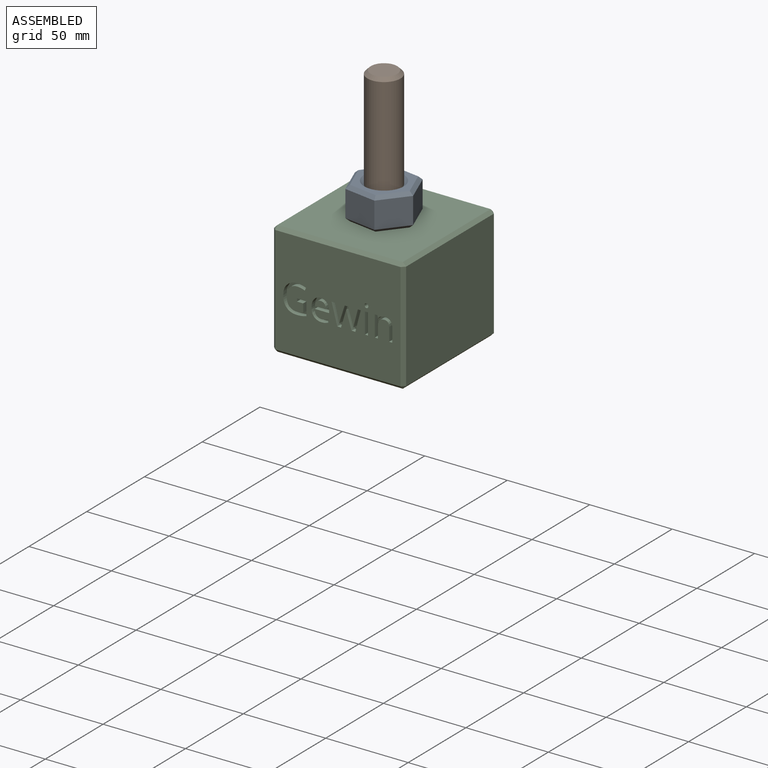
[diagram: assembled view]
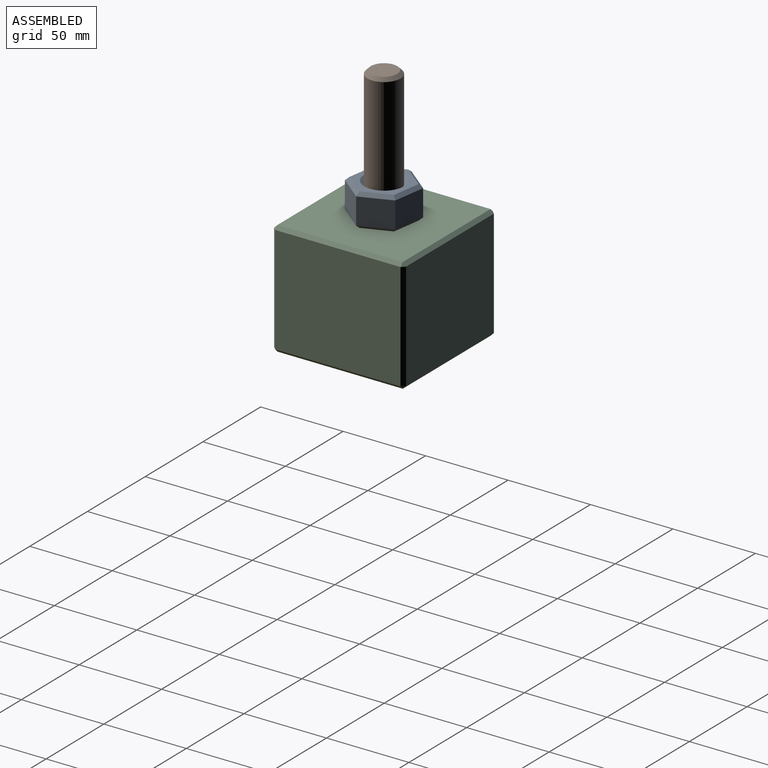
[diagram: assembled view, second angle]
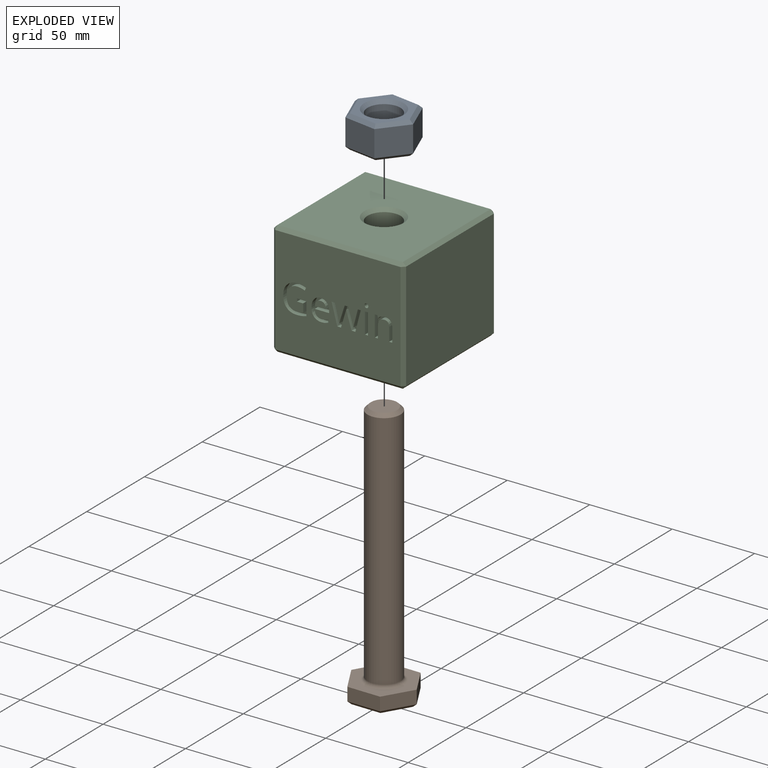
[diagram: exploded view]
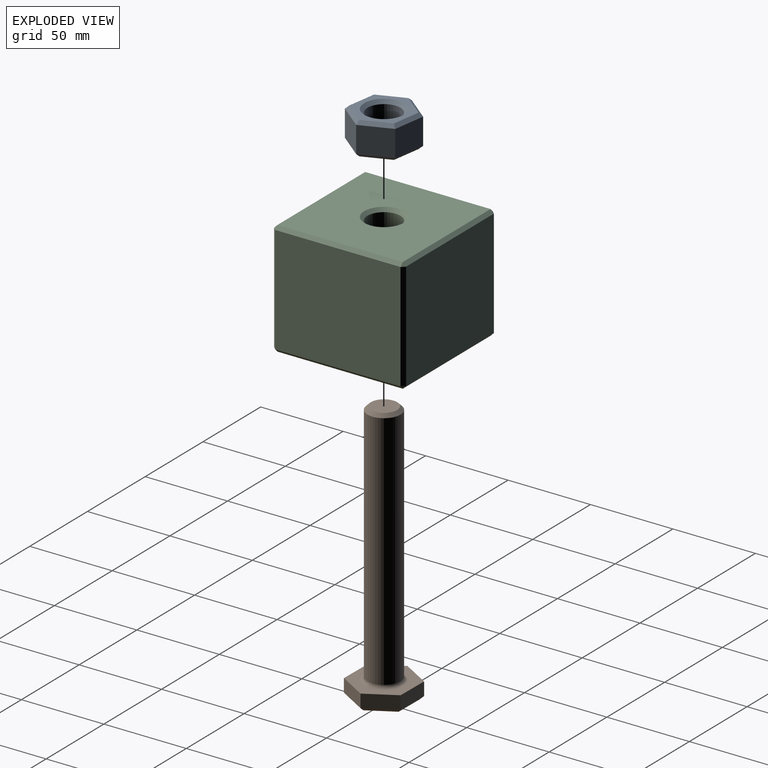
[diagram: exploded view, second angle]
ASSEMBLY  parts=3 mates=2
PART A: 23 faces, bbox 39.5x37.3x20 mm
  f0: plane 16x15.6mm, normal (0.78,-0.63,0), area 320mm2, adj f1,f5,f12,f16
  f1: plane 18.64x16mm, normal (0.93,0.36,0), area 320mm2, adj f0,f2,f10,f15
  f2: plane 19.77x16mm, normal (0.15,0.99,0), area 320mm2, adj f1,f3,f9,f17
  f3: plane 16x15.6mm, normal (-0.78,0.63,0), area 320mm2, adj f2,f4,f11,f19
  f4: plane 18.64x16mm, normal (-0.93,-0.36,0), area 320mm2, adj f3,f5,f13,f20
  f5: plane 19.77x16mm, normal (-0.15,-0.99,0), area 320mm2, adj f0,f4,f14,f18
  f6: plane 34.97x32.97mm, normal (0,0,1), area 360.7mm2, adj f15,f16,f17,f18,f19,f20,f21
  f7: plane 34.97x32.97mm, normal (0,0,-1), area 360.7mm2, adj f9,f10,f11,f12,f13,f14,f22
  f8: cylinder r=10mm len=20mm, axis (0,0,1), area 1005.3mm2, adj f21,f22
  f9: plane 19.77x4.84mm, normal (0.11,0.7,-0.71), area 53.3mm2, adj f2,f7,f10,f11
  f10: plane 18.64x8.7mm, normal (0.66,0.26,-0.71), area 53.3mm2, adj f1,f7,f9,f12
  f11: plane 15.95x13.35mm, normal (-0.55,0.44,-0.71), area 53.3mm2, adj f3,f7,f9,f13
  f12: plane 15.95x13.35mm, normal (0.55,-0.44,-0.71), area 53.3mm2, adj f0,f7,f10,f14
  f13: plane 18.64x8.7mm, normal (-0.66,-0.26,-0.71), area 53.3mm2, adj f4,f7,f11,f14
  f14: plane 19.77x4.84mm, normal (-0.11,-0.7,-0.71), area 53.3mm2, adj f5,f7,f12,f13
  f15: plane 18.64x8.7mm, normal (0.66,0.26,0.71), area 53.3mm2, adj f1,f6,f16,f17
  f16: plane 15.95x13.35mm, normal (0.55,-0.44,0.71), area 53.3mm2, adj f0,f6,f15,f18
  f17: plane 19.77x4.84mm, normal (0.11,0.7,0.71), area 53.3mm2, adj f2,f6,f15,f19
  f18: plane 19.77x4.84mm, normal (-0.11,-0.7,0.71), area 53.3mm2, adj f5,f6,f16,f20
  f19: plane 15.95x13.35mm, normal (-0.55,0.44,0.71), area 53.3mm2, adj f3,f6,f17,f20
  f20: plane 18.64x8.7mm, normal (-0.66,-0.26,0.71), area 53.3mm2, adj f4,f6,f18,f19
  f21: cone r=10mm half-angle=45deg, axis (0,0,1), area 195.5mm2, adj f6,f8
  f22: cone r=12mm half-angle=45deg, axis (0,0,-1), area 195.5mm2, adj f7,f8
PART B: 18 faces, bbox 40x34.9x160 mm
  f0: plane 17.43x9.8mm, normal (0.87,0.49,0), area 160mm2, adj f1,f5,f6,f17
  f1: plane 20x8mm, normal (0.01,1,0), area 160mm2, adj f0,f2,f6,f15
  f2: plane 17.21x10.2mm, normal (-0.86,0.51,0), area 160mm2, adj f1,f3,f6,f13
  f3: plane 17.43x9.8mm, normal (-0.87,-0.49,0), area 160mm2, adj f2,f4,f6,f12
  f4: plane 20x8mm, normal (-0.01,-1,0), area 160mm2, adj f3,f5,f6,f14
  f5: plane 17.21x10.2mm, normal (0.86,-0.51,0), area 160mm2, adj f0,f4,f6,f16
  f6: plane 40x34.87mm, normal (0,0,1), area 586.8mm2, adj f0,f1,f2,f3,f4,f5,f11
  f7: plane 35.38x30.84mm, normal (0,0,-1), area 813.1mm2, adj f12,f13,f14,f15,f16,f17
  f8: cylinder r=10mm len=146mm, axis (0,0,-1), area 9173.5mm2, adj f10,f11
  f9: plane 16x16mm, normal (0,0,1), area 201.1mm2, adj f10
  f10: cone r=8mm half-angle=45deg, axis (0,0,-1), area 159.9mm2, adj f8,f9
  f11: torus R=12mm, axis (0,0,1), area 211.7mm2, adj f6,f8
  f12: plane 17.43x10.98mm, normal (-0.62,-0.35,-0.71), area 53.3mm2, adj f3,f7,f13,f14
  f13: plane 17.23x11.33mm, normal (-0.61,0.36,-0.71), area 53.3mm2, adj f2,f7,f12,f15
  f14: plane 20x2.21mm, normal (-0.01,-0.71,-0.71), area 53.3mm2, adj f4,f7,f12,f16
  f15: plane 20x2.21mm, normal (0.01,0.71,-0.71), area 53.3mm2, adj f1,f7,f13,f17
  f16: plane 17.23x11.33mm, normal (0.61,-0.36,-0.71), area 53.3mm2, adj f5,f7,f14,f17
  f17: plane 17.43x10.98mm, normal (0.62,0.35,-0.71), area 53.3mm2, adj f0,f7,f15,f16
PART C: 127 faces, bbox 80x80x69.4 mm
  f0: plane 76x65.43mm, normal (0,-1,0), area 4627mm2, adj f12,f13,f22,f23,f33,f34,f35,f36
  f1: plane 76x65.43mm, normal (1,0,0), area 4973mm2, adj f14,f23,f24,f28
  f2: plane 76x76mm, normal (0,0,1), area 5323.6mm2, adj f8,f9,f13,f14,f15
  f3: plane 76x65.43mm, normal (-1,0,0), area 4973mm2, adj f9,f12,f16,f17
  f4: plane 76x76mm, normal (0,0,-1), area 5323.6mm2, adj f7,f17,f22,f25,f28
  f5: plane 76x65.43mm, normal (0,1,0), area 4973mm2, adj f15,f16,f24,f25
  f6: cylinder r=10mm len=65.43mm, axis (0,0,-1), area 4111.4mm2, adj f7,f8
  f7: cone r=10mm half-angle=45deg, axis (0,0,-1), area 195.5mm2, adj f4,f6
  f8: cone r=12mm half-angle=45deg, axis (0,0,1), area 195.5mm2, adj f2,f6
  f9: plane 76x2mm, normal (-0.71,0,0.71), area 215mm2, adj f2,f3,f10,f11
  f10: plane 2x2mm, normal (-0.58,-0.58,0.58), area 3.5mm2, adj f9,f12,f13
  f11: plane 2x2mm, normal (-0.58,0.58,0.58), area 3.5mm2, adj f9,f15,f16
  f12: plane 65.43x2mm, normal (-0.71,-0.71,0), area 185.1mm2, adj f0,f3,f10,f18
  f13: plane 76x2mm, normal (0,-0.71,0.71), area 215mm2, adj f0,f2,f10,f19
  f14: plane 76x2mm, normal (0.71,0,0.71), area 215mm2, adj f1,f2,f19,f20
  f15: plane 76x2mm, normal (0,0.71,0.71), area 215mm2, adj f2,f5,f11,f20
  f16: plane 65.43x2mm, normal (-0.71,0.71,0), area 185.1mm2, adj f3,f5,f11,f21
  f17: plane 76x2mm, normal (-0.71,0,-0.71), area 215mm2, adj f3,f4,f18,f21
  f18: plane 2x2mm, normal (-0.58,-0.58,-0.58), area 3.5mm2, adj f12,f17,f22
  f19: plane 2x2mm, normal (0.58,-0.58,0.58), area 3.5mm2, adj f13,f14,f23
  f20: plane 2x2mm, normal (0.58,0.58,0.58), area 3.5mm2, adj f14,f15,f24
  f21: plane 2x2mm, normal (-0.58,0.58,-0.58), area 3.5mm2, adj f16,f17,f25
  f22: plane 76x2mm, normal (0,-0.71,-0.71), area 215mm2, adj f0,f4,f18,f26
  f23: plane 65.43x2mm, normal (0.71,-0.71,0), area 185.1mm2, adj f0,f1,f19,f26
  f24: plane 65.43x2mm, normal (0.71,0.71,0), area 185.1mm2, adj f1,f5,f20,f27
  f25: plane 76x2mm, normal (0,0.71,-0.71), area 215mm2, adj f4,f5,f21,f27
  f26: plane 2x2mm, normal (0.58,-0.58,-0.58), area 3.5mm2, adj f22,f23,f28
  f27: plane 2x2mm, normal (0.58,0.58,-0.58), area 3.5mm2, adj f24,f25,f28
  f28: plane 76x2mm, normal (0.71,0,-0.71), area 215mm2, adj f1,f4,f26,f27
  f29: extruded ~3x2.43mm, area 8.1mm2, adj f30,f47,f48,f126
  f30: extruded ~3x2.31mm, area 7.8mm2, adj f29,f31,f48,f126
  f31: extruded ~3x2.78mm, area 8.9mm2, adj f30,f32,f48,f126
  f32: plane 6.62x3mm, normal (0,0,-1), area 19.9mm2, adj f31,f47,f48,f126
  f33: extruded ~4.43x3mm, area 14.7mm2, adj f0,f34,f46,f48
  f34: extruded ~3x2.19mm, area 6.6mm2, adj f0,f33,f35,f48
  f35: extruded ~3x1.92mm, area 6.1mm2, adj f0,f34,f36,f48
  f36: plane 3x1.71mm, normal (-1,0,0), area 5.1mm2, adj f0,f35,f37,f48
  f37: extruded ~4.04x3mm, area 12.5mm2, adj f0,f36,f38,f48
  f38: extruded ~3.01x3mm, area 10mm2, adj f0,f37,f39,f48
  f39: extruded ~3.39x3mm, area 10.9mm2, adj f0,f38,f40,f48
  f40: plane 8.73x3mm, normal (0,0,1), area 26.2mm2, adj f0,f39,f41,f48
  f41: plane 3x1.21mm, normal (-1,0,0), area 3.6mm2, adj f0,f40,f42,f48
  f42: extruded ~4.13x3mm, area 13.4mm2, adj f0,f41,f43,f48
  f43: extruded ~3.77x3mm, area 12.6mm2, adj f0,f42,f44,f48
  f44: extruded ~4.05x3mm, area 13.8mm2, adj f0,f43,f45,f48
  f45: extruded ~4.87x3mm, area 15.6mm2, adj f0,f44,f46,f48
  f46: extruded ~4.75x3mm, area 15.4mm2, adj f0,f33,f45,f48
  f47: extruded ~3x2.75mm, area 9mm2, adj f29,f32,f48,f126
  f48: plane 13.13x10.72mm, normal (0,-1,0), area 64mm2, adj f29,f30,f31,f32,f33,f34,f35,f36
  f49: plane 7.43x3mm, normal (0.95,0,0.3), area 23.4mm2, adj f0,f50,f71,f72
  f50: plane 3x2.28mm, normal (0,0,1), area 6.8mm2, adj f0,f49,f51,f72
  f51: plane 12.67x3.5mm, normal (-0.96,0,0.27), area 39.4mm2, adj f0,f50,f52,f72
  f52: plane 3x1.99mm, normal (0,0,-1), area 6mm2, adj f0,f51,f53,f72
  f53: extruded ~9.33x3mm, area 28.9mm2, adj f0,f52,f54,f72
  f54: extruded ~3x1.29mm, area 3.9mm2, adj f0,f53,f55,f72
  f55: plane 3x0.09mm, normal (0,0,-1), area 0.3mm2, adj f0,f54,f56,f72
  f56: extruded ~3.34x3mm, area 10.4mm2, adj f0,f55,f57,f72
  f57: plane 7.27x3mm, normal (-0.95,0,-0.3), area 22.9mm2, adj f0,f56,f58,f72
  f58: plane 3x2.08mm, normal (0,0,-1), area 6.2mm2, adj f0,f57,f59,f72
  f59: plane 7.27x3mm, normal (0.95,0,-0.3), area 22.9mm2, adj f0,f58,f60,f72
  f60: extruded ~3x1.66mm, area 5.2mm2, adj f0,f59,f61,f72
  f61: extruded ~3x1.71mm, area 5.3mm2, adj f0,f60,f62,f72
  f62: plane 3x0.09mm, normal (0,0,-1), area 0.3mm2, adj f0,f61,f63,f72
  f63: extruded ~3.36x3mm, area 10.3mm2, adj f0,f62,f64,f72
  f64: extruded ~7.27x3mm, area 22.5mm2, adj f0,f63,f65,f72
  f65: plane 3x2.01mm, normal (0,0,-1), area 6mm2, adj f0,f64,f66,f72
  f66: plane 12.67x3.45mm, normal (0.96,0,0.26), area 39.4mm2, adj f0,f65,f67,f72
  f67: plane 3x2.22mm, normal (0,0,1), area 6.7mm2, adj f0,f66,f68,f72
  f68: plane 7.41x3mm, normal (-0.95,0,0.31), area 23.4mm2, adj f0,f67,f69,f72
  f69: extruded ~3.12x3mm, area 9.7mm2, adj f0,f68,f70,f72
  f70: plane 3x0.09mm, normal (0,0,1), area 0.3mm2, adj f0,f69,f71,f72
  f71: extruded ~3.1x3mm, area 9.6mm2, adj f0,f49,f70,f72
  f72: plane 17.89x12.67mm, normal (0,-1,0), area 88.4mm2, adj f49,f50,f51,f52,f53,f54,f55,f56
  f73: plane 3x1.92mm, normal (0,0,1), area 5.8mm2, adj f0,f74,f76,f77
  f74: plane 12.67x3mm, normal (-1,0,0), area 38mm2, adj f0,f73,f75,f77
  f75: plane 3x1.92mm, normal (0,0,-1), area 5.8mm2, adj f0,f74,f76,f77
  f76: plane 12.67x3mm, normal (1,0,0), area 38mm2, adj f0,f73,f75,f77
  f77: plane 12.67x1.92mm, normal (0,-1,0), area 24.3mm2, adj f73,f74,f75,f76
  f78: extruded ~3x0.97mm, area 3.1mm2, adj f0,f79,f85,f86
  f79: extruded ~3x0.97mm, area 3.1mm2, adj f0,f78,f80,f86
  f80: extruded ~3x0.81mm, area 2.7mm2, adj f0,f79,f81,f86
  f81: extruded ~3x0.8mm, area 2.6mm2, adj f0,f80,f82,f86
  f82: extruded ~3x0.97mm, area 3.2mm2, adj f0,f81,f83,f86
  f83: extruded ~3x0.96mm, area 3.1mm2, adj f0,f82,f84,f86
  f84: extruded ~3x0.8mm, area 2.6mm2, adj f0,f83,f85,f86
  f85: extruded ~3x0.81mm, area 2.7mm2, adj f0,f78,f84,f86
  f86: plane 2.56x2.27mm, normal (0,-1,0), area 4.7mm2, adj f78,f79,f80,f81,f82,f83,f84,f85
  f87: plane 8.2x3mm, normal (1,0,0), area 24.6mm2, adj f0,f88,f103,f104
  f88: plane 3x1.92mm, normal (0,0,1), area 5.8mm2, adj f0,f87,f89,f104
  f89: plane 8.26x3mm, normal (-1,0,0), area 24.8mm2, adj f0,f88,f90,f104
  f90: extruded ~3.53x3mm, area 11.5mm2, adj f0,f89,f91,f104
  f91: extruded ~3.45x3mm, area 11.1mm2, adj f0,f90,f92,f104
  f92: extruded ~3x2.37mm, area 7.3mm2, adj f0,f91,f93,f104
  f93: extruded ~3x1.66mm, area 6.7mm2, adj f0,f92,f94,f104
  f94: plane 3x0.09mm, normal (0,0,-1), area 0.3mm2, adj f0,f93,f95,f104
  f95: plane 3x1.73mm, normal (-0.98,0,-0.18), area 5.3mm2, adj f0,f94,f96,f104
  f96: plane 3x1.56mm, normal (0,0,-1), area 4.7mm2, adj f0,f95,f97,f104
  f97: plane 12.67x3mm, normal (1,0,0), area 38mm2, adj f0,f96,f98,f104
  f98: plane 3x1.92mm, normal (0,0,1), area 5.8mm2, adj f0,f97,f99,f104
  f99: plane 6.65x3mm, normal (-1,0,0), area 19.9mm2, adj f0,f98,f100,f104
  f100: extruded ~3.55x3mm, area 11.2mm2, adj f0,f99,f101,f104
  f101: extruded ~3x2.91mm, area 9.6mm2, adj f0,f100,f102,f104
  f102: extruded ~3x2.21mm, area 7.2mm2, adj f0,f101,f103,f104
  f103: extruded ~3x2.31mm, area 7.4mm2, adj f0,f87,f102,f104
  f104: plane 12.9x10.59mm, normal (0,-1,0), area 58.2mm2, adj f87,f88,f89,f90,f91,f92,f93,f94
  f105: plane 5.74x3mm, normal (0,0,-1), area 17.2mm2, adj f0,f106,f124,f125
  f106: plane 3x1.76mm, normal (1,0,0), area 5.3mm2, adj f0,f105,f107,f125
  f107: plane 3.78x3mm, normal (0,0,1), area 11.3mm2, adj f0,f106,f108,f125
  f108: plane 5.2x3mm, normal (1,0,0), area 15.6mm2, adj f0,f107,f109,f125
  f109: extruded ~3.43x3mm, area 10.4mm2, adj f0,f108,f110,f125
  f110: extruded ~4.91x3mm, area 16.1mm2, adj f0,f109,f111,f125
  f111: extruded ~5.19x3mm, area 16.8mm2, adj f0,f110,f112,f125
  f112: extruded ~5.1x3mm, area 16.6mm2, adj f0,f111,f113,f125
  f113: extruded ~4.82x3mm, area 15.9mm2, adj f0,f112,f114,f125
  f114: extruded ~4.41x3mm, area 13.6mm2, adj f0,f113,f115,f125
  f115: plane 3x1.73mm, normal (-0.92,0,0.4), area 5.7mm2, adj f0,f114,f116,f125
  f116: extruded ~5.04x3mm, area 15.5mm2, adj f0,f115,f117,f125
  f117: extruded ~4.65x3mm, area 14.5mm2, adj f0,f116,f118,f125
  f118: extruded ~3.05x3.03mm, area 13.1mm2, adj f0,f117,f119,f125
  f119: extruded ~4.62x3mm, area 14.4mm2, adj f0,f118,f120,f125
  f120: extruded ~6.4x3mm, area 20.7mm2, adj f0,f119,f121,f125
  f121: extruded ~5.97x3mm, area 19.8mm2, adj f0,f120,f122,f125
  f122: extruded ~3.21x3mm, area 9.7mm2, adj f0,f121,f123,f125
  f123: extruded ~3x2.73mm, area 8.4mm2, adj f0,f122,f124,f125
  f124: plane 8.22x3mm, normal (-1,0,0), area 24.7mm2, adj f0,f105,f123,f125
  f125: plane 17.37x14.05mm, normal (0,-1,0), area 86.5mm2, adj f105,f106,f107,f108,f109,f110,f111,f112
  f126: plane 6.62x3.74mm, normal (0,-1,0), area 20mm2, adj f29,f30,f31,f32,f47
PLACE A t=(0.29,0.08,34.59)mm
PLACE B t=(0.29,0.08,-44.84)mm
PLACE C t=(0.29,0.08,-0.12)mm fixed
MATE fastened C.f6 <-> B.f8  axis (0,0,-1) through (0.29,0.08,-34.84)mm
MATE fastened C.f6 <-> A.f8  axis (0,0,1) through (0.29,0.08,34.59)mm
